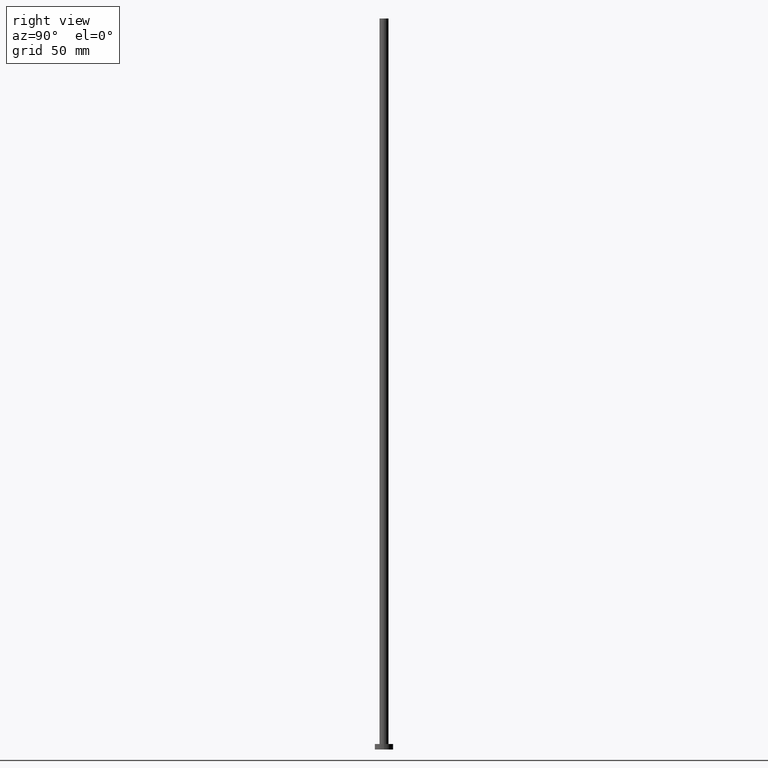
[diagram: clean part render]
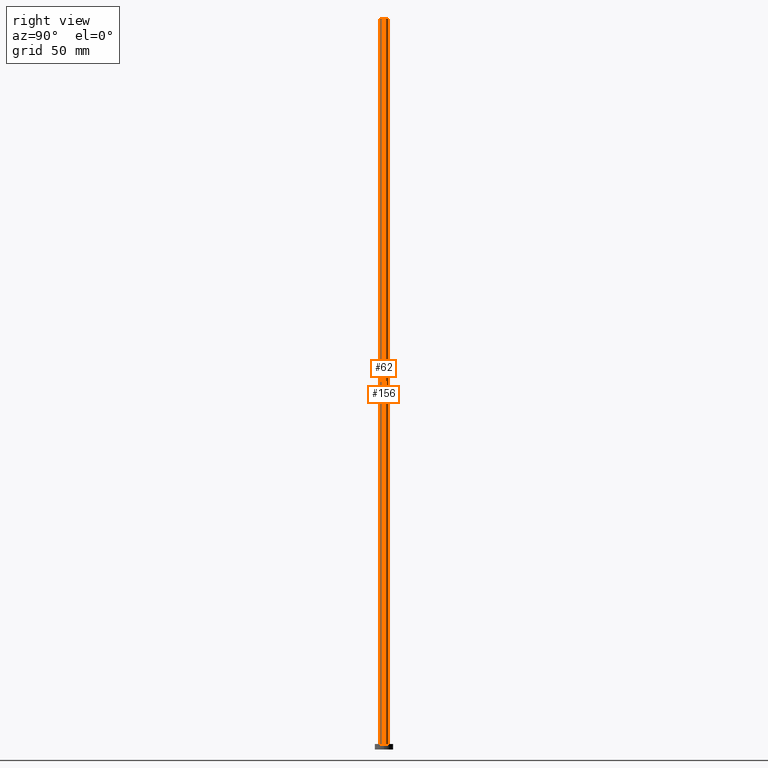
[diagram: same view with one multi-face feature highlighted, each face labeled with its STEP entity id]
A machine part, right view. The highlighted faces form ONE feature: a constant-radius fillet chain: 2 tangent blend faces with common blend radius 2.5 mm. The faces share edges in the B-rep.
Their STEP definitions:
[1] entity #62 (Cylinder):
#2 = VERTEX_POINT ( 'NONE', #219 ) ;
#23 = VERTEX_POINT ( 'NONE', #240 ) ;
#30 = CARTESIAN_POINT ( 'NONE',  ( -2.500000000000000000, 0.000000000000000000, 3.000000000000000000 ) ) ;
#31 = DIRECTION ( 'NONE',  ( -0.000000000000000000, -0.000000000000000000, -1.000000000000000000 ) ) ;
#39 = DIRECTION ( 'NONE',  ( -0.000000000000000000, -0.000000000000000000, -1.000000000000000000 ) ) ;
#40 = AXIS2_PLACEMENT_3D ( 'NONE', #94, #244, #158 ) ;
#43 = LINE ( 'NONE', #136, #194 ) ;
#44 = DIRECTION ( 'NONE',  ( -1.000000000000000000, 0.000000000000000000, 0.000000000000000000 ) ) ;
#48 = LINE ( 'NONE', #125, #205 ) ;
#49 = ORIENTED_EDGE ( 'NONE', *, *, #254, .T. ) ;
#55 = EDGE_LOOP ( 'NONE', ( #192, #74, #188, #49 ) ) ;
#62 = ADVANCED_FACE ( 'NONE', ( #222 ), #216, .T. ) ;
#71 = CARTESIAN_POINT ( 'NONE',  ( 0.000000000000000000, 0.000000000000000000, 400.0000000000000000 ) ) ;
#73 = VERTEX_POINT ( 'NONE', #30 ) ;
#74 = ORIENTED_EDGE ( 'NONE', *, *, #177, .F. ) ;
#78 = AXIS2_PLACEMENT_3D ( 'NONE', #71, #200, #44 ) ;
#84 = DIRECTION ( 'NONE',  ( 1.000000000000000000, 0.000000000000000000, 0.000000000000000000 ) ) ;
#94 = CARTESIAN_POINT ( 'NONE',  ( 0.000000000000000000, 0.000000000000000000, 400.0000000000000000 ) ) ;
#101 = EDGE_CURVE ( 'NONE', #109, #2, #43, .T. ) ;
#109 = VERTEX_POINT ( 'NONE', #114 ) ;
#111 = CIRCLE ( 'NONE', #40, 2.500000000000000000 ) ;
#114 = CARTESIAN_POINT ( 'NONE',  ( 2.500000000000000000, 3.061616997868383141E-16, 400.0000000000000000 ) ) ;
#125 = CARTESIAN_POINT ( 'NONE',  ( -2.500000000000000000, 0.000000000000000000, 400.0000000000000000 ) ) ;
#131 = CIRCLE ( 'NONE', #143, 2.500000000000000000 ) ;
#136 = CARTESIAN_POINT ( 'NONE',  ( 2.500000000000000000, 3.061616997868383141E-16, 400.0000000000000000 ) ) ;
#143 = AXIS2_PLACEMENT_3D ( 'NONE', #225, #145, #84 ) ;
#145 = DIRECTION ( 'NONE',  ( 0.000000000000000000, 0.000000000000000000, 1.000000000000000000 ) ) ;
#158 = DIRECTION ( 'NONE',  ( 1.000000000000000000, 0.000000000000000000, 0.000000000000000000 ) ) ;
#177 = EDGE_CURVE ( 'NONE', #23, #109, #111, .T. ) ;
#188 = ORIENTED_EDGE ( 'NONE', *, *, #247, .T. ) ;
#192 = ORIENTED_EDGE ( 'NONE', *, *, #101, .F. ) ;
#194 = VECTOR ( 'NONE', #39, 1000.000000000000000 ) ;
#200 = DIRECTION ( 'NONE',  ( -0.000000000000000000, -0.000000000000000000, -1.000000000000000000 ) ) ;
#205 = VECTOR ( 'NONE', #31, 1000.000000000000000 ) ;
#216 = CYLINDRICAL_SURFACE ( 'NONE', #78, 2.500000000000000000 ) ;
#219 = CARTESIAN_POINT ( 'NONE',  ( 2.500000000000000000, 3.061616997868383141E-16, 3.000000000000000000 ) ) ;
#222 = FACE_OUTER_BOUND ( 'NONE', #55, .T. ) ;
#225 = CARTESIAN_POINT ( 'NONE',  ( 0.000000000000000000, 0.000000000000000000, 3.000000000000000000 ) ) ;
#240 = CARTESIAN_POINT ( 'NONE',  ( -2.500000000000000000, 0.000000000000000000, 400.0000000000000000 ) ) ;
#244 = DIRECTION ( 'NONE',  ( 0.000000000000000000, 0.000000000000000000, 1.000000000000000000 ) ) ;
#247 = EDGE_CURVE ( 'NONE', #23, #73, #48, .T. ) ;
#254 = EDGE_CURVE ( 'NONE', #73, #2, #131, .T. ) ;
[2] entity #156 (Cylinder):
#2 = VERTEX_POINT ( 'NONE', #219 ) ;
#11 = DIRECTION ( 'NONE',  ( 1.000000000000000000, 0.000000000000000000, 0.000000000000000000 ) ) ;
#23 = VERTEX_POINT ( 'NONE', #240 ) ;
#26 = CIRCLE ( 'NONE', #51, 2.500000000000000000 ) ;
#29 = DIRECTION ( 'NONE',  ( -1.000000000000000000, 0.000000000000000000, 0.000000000000000000 ) ) ;
#30 = CARTESIAN_POINT ( 'NONE',  ( -2.500000000000000000, 0.000000000000000000, 3.000000000000000000 ) ) ;
#31 = DIRECTION ( 'NONE',  ( -0.000000000000000000, -0.000000000000000000, -1.000000000000000000 ) ) ;
#39 = DIRECTION ( 'NONE',  ( -0.000000000000000000, -0.000000000000000000, -1.000000000000000000 ) ) ;
#43 = LINE ( 'NONE', #136, #194 ) ;
#48 = LINE ( 'NONE', #125, #205 ) ;
#51 = AXIS2_PLACEMENT_3D ( 'NONE', #221, #56, #218 ) ;
#56 = DIRECTION ( 'NONE',  ( 0.000000000000000000, 0.000000000000000000, 1.000000000000000000 ) ) ;
#66 = EDGE_CURVE ( 'NONE', #2, #73, #93, .T. ) ;
#72 = DIRECTION ( 'NONE',  ( 0.000000000000000000, 0.000000000000000000, 1.000000000000000000 ) ) ;
#73 = VERTEX_POINT ( 'NONE', #30 ) ;
#86 = ORIENTED_EDGE ( 'NONE', *, *, #66, .T. ) ;
#91 = EDGE_CURVE ( 'NONE', #109, #23, #26, .T. ) ;
#93 = CIRCLE ( 'NONE', #129, 2.500000000000000000 ) ;
#99 = CARTESIAN_POINT ( 'NONE',  ( 0.000000000000000000, 0.000000000000000000, 400.0000000000000000 ) ) ;
#101 = EDGE_CURVE ( 'NONE', #109, #2, #43, .T. ) ;
#109 = VERTEX_POINT ( 'NONE', #114 ) ;
#114 = CARTESIAN_POINT ( 'NONE',  ( 2.500000000000000000, 3.061616997868383141E-16, 400.0000000000000000 ) ) ;
#118 = CYLINDRICAL_SURFACE ( 'NONE', #196, 2.500000000000000000 ) ;
#119 = FACE_OUTER_BOUND ( 'NONE', #212, .T. ) ;
#125 = CARTESIAN_POINT ( 'NONE',  ( -2.500000000000000000, 0.000000000000000000, 400.0000000000000000 ) ) ;
#128 = ORIENTED_EDGE ( 'NONE', *, *, #91, .F. ) ;
#129 = AXIS2_PLACEMENT_3D ( 'NONE', #238, #72, #11 ) ;
#136 = CARTESIAN_POINT ( 'NONE',  ( 2.500000000000000000, 3.061616997868383141E-16, 400.0000000000000000 ) ) ;
#153 = ORIENTED_EDGE ( 'NONE', *, *, #101, .T. ) ;
#156 = ADVANCED_FACE ( 'NONE', ( #119 ), #118, .T. ) ;
#163 = DIRECTION ( 'NONE',  ( -0.000000000000000000, -0.000000000000000000, -1.000000000000000000 ) ) ;
#194 = VECTOR ( 'NONE', #39, 1000.000000000000000 ) ;
#196 = AXIS2_PLACEMENT_3D ( 'NONE', #99, #163, #29 ) ;
#205 = VECTOR ( 'NONE', #31, 1000.000000000000000 ) ;
#212 = EDGE_LOOP ( 'NONE', ( #128, #153, #86, #227 ) ) ;
#218 = DIRECTION ( 'NONE',  ( 1.000000000000000000, 0.000000000000000000, 0.000000000000000000 ) ) ;
#219 = CARTESIAN_POINT ( 'NONE',  ( 2.500000000000000000, 3.061616997868383141E-16, 3.000000000000000000 ) ) ;
#221 = CARTESIAN_POINT ( 'NONE',  ( 0.000000000000000000, 0.000000000000000000, 400.0000000000000000 ) ) ;
#227 = ORIENTED_EDGE ( 'NONE', *, *, #247, .F. ) ;
#238 = CARTESIAN_POINT ( 'NONE',  ( 0.000000000000000000, 0.000000000000000000, 3.000000000000000000 ) ) ;
#240 = CARTESIAN_POINT ( 'NONE',  ( -2.500000000000000000, 0.000000000000000000, 400.0000000000000000 ) ) ;
#247 = EDGE_CURVE ( 'NONE', #23, #73, #48, .T. ) ;